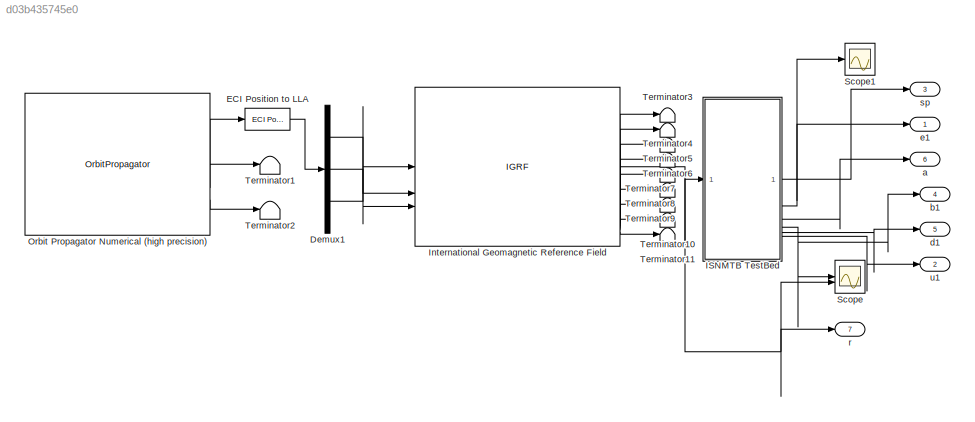
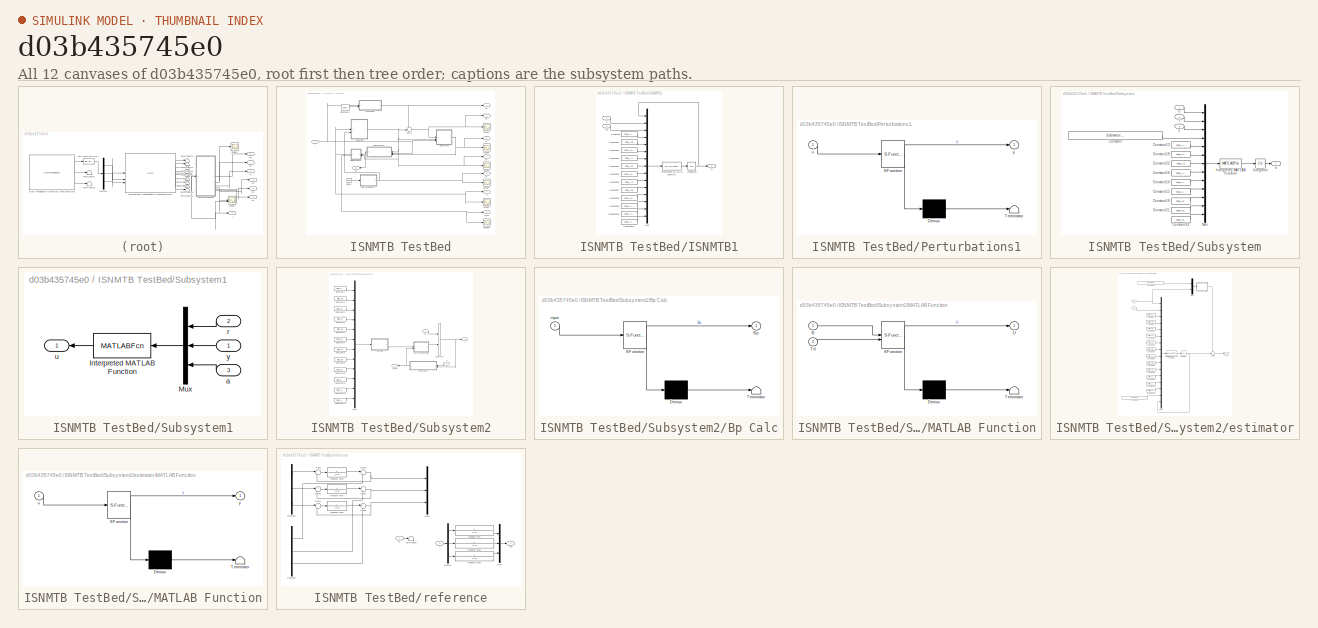
[diagram: thumbnail index - all 12 canvases of the model, root first then tree order]
MODEL slx_d03b435745e0
KIND model
CONFIG AbsTol = auto
CONFIG EnableMultiTasking = off
CONFIG FixedStep = 1E-4
CONFIG MaxStep = auto
CONFIG MinStep = auto
CONFIG RelTol = 1e-3
CONFIG SampleTimeConstraint = Unconstrained
CONFIG SolverName = ode4
CONFIG StartTime = 0.0
CONFIG StopTime = 20000
BLOCK [Demux] Demux1
  Outputs = 3
BLOCK [Reference] ECI Position to LLA  REF=aerolibtransform2/ECI Position to LLA
  AttributesFormatString = %<red>
  SourceBlock = aerolibtransform2/ECI Position to LLA
  SourceType = ECItoLLA
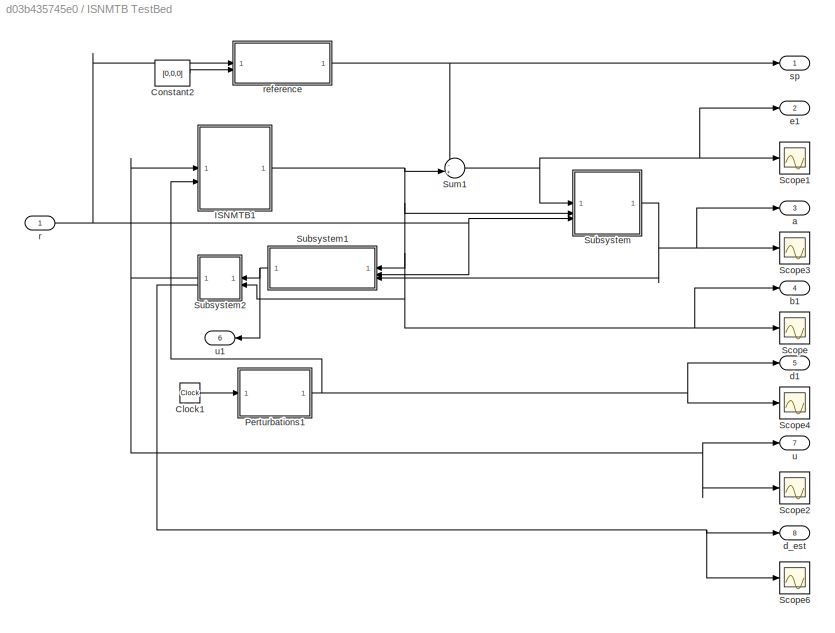
BLOCK [SubSystem] ISNMTB TestBed
BLOCK [Clock] ISNMTB TestBed/Clock1
  Decimation = 1000
BLOCK [Constant] ISNMTB TestBed/Constant2
  Value = [0,0,0]
BLOCK [SubSystem] ISNMTB TestBed/ISNMTB1
BLOCK [Constant] ISNMTB TestBed/ISNMTB1/Constant
  Value = initial_1.Lx
BLOCK [Constant] ISNMTB TestBed/ISNMTB1/Constant1
  Value = initial_1.Rx
BLOCK [Constant] ISNMTB TestBed/ISNMTB1/Constant10
  Value = initial_1.Lxz
BLOCK [Constant] ISNMTB TestBed/ISNMTB1/Constant11
  Value = initial_1.Lzy
BLOCK [Constant] ISNMTB TestBed/ISNMTB1/Constant2
  Value = initial_1.B_x
BLOCK [Constant] ISNMTB TestBed/ISNMTB1/Constant3
  Value = initial_1.Ly
BLOCK [Constant] ISNMTB TestBed/ISNMTB1/Constant4
  Value = initial_1.Ry
BLOCK [Constant] ISNMTB TestBed/ISNMTB1/Constant5
  Value = initial_1.B_y
BLOCK [Constant] ISNMTB TestBed/ISNMTB1/Constant6
  Value = initial_1.Lz
BLOCK [Constant] ISNMTB TestBed/ISNMTB1/Constant7
  Value = initial_1.Rz
BLOCK [Constant] ISNMTB TestBed/ISNMTB1/Constant8
  Value = initial_1.B_z
BLOCK [Constant] ISNMTB TestBed/ISNMTB1/Constant9
  Value = initial_1.Lxy
BLOCK [Integrator] ISNMTB TestBed/ISNMTB1/Integrator
  InitialCondition = [3.249E4, -2.265E4, 3.655E4]
BLOCK [MATLABFcn] ISNMTB TestBed/ISNMTB1/Interpreted MATLAB Function
  MATLABFcn = is501nmtbModel_simu
BLOCK [Mux] ISNMTB TestBed/ISNMTB1/Mux
  DisplayOption = bar
  Inputs = 15
BLOCK [Inport] ISNMTB TestBed/ISNMTB1/Td
  Port = 2
BLOCK [Outport] ISNMTB TestBed/ISNMTB1/X
BLOCK [Inport] ISNMTB TestBed/ISNMTB1/u
BLOCK [SubSystem] ISNMTB TestBed/Perturbations1
  ErrorFcn = Stateflow.Translate.translate
  PermitHierarchicalResolution = ExplicitOnly
  SFBlockType = MATLAB Function
  TreatAsAtomicUnit = on
BLOCK [Demux] ISNMTB TestBed/Perturbations1/ Demux 
  Outputs = 1
BLOCK [S-Function] ISNMTB TestBed/Perturbations1/ SFunction 
  EnableBusSupport = off
  FunctionName = sf_sfun
  PortCounts = [1 2]
  SFcnIsStateOwnerBlock = off
  SFunctionDeploymentMode = off
  Tag = Stateflow S-Function 2
BLOCK [Terminator] ISNMTB TestBed/Perturbations1/ Terminator 
BLOCK [Inport] ISNMTB TestBed/Perturbations1/u
BLOCK [Outport] ISNMTB TestBed/Perturbations1/y
BLOCK [Scope] ISNMTB TestBed/Scope
  Floating = off
  NumInputPorts = 1
  ScopeSpecificationString = Simulink.scopes.TimeScopeBlockCfg('CurrentConfiguration', extmgr.ConfigurationSet(extmgr.Configuration('Core','General UI',true),extmgr.Configuration('Core','Source UI',true),extmgr.Configuration('Sources','WiredSimulink',true,'DataLoggingVariableName','ScopeData1'),extmgr.Configuration('Visuals','Time Domain',true,'SerializedDisplays',{struct('MinYLimReal','-30050.00000','MaxYLimReal','43950.0000...<+1584ch>
BLOCK [Scope] ISNMTB TestBed/Scope1
  Floating = off
  NumInputPorts = 1
  ScopeSpecificationString = Simulink.scopes.TimeScopeBlockCfg('CurrentConfiguration', extmgr.ConfigurationSet(extmgr.Configuration('Core','General UI',true),extmgr.Configuration('Core','Source UI',true),extmgr.Configuration('Sources','WiredSimulink',true,'DataLoggingVariableName','ScopeData2'),extmgr.Configuration('Visuals','Time Domain',true,'SerializedDisplays',{struct('MinYLimReal','-30050.00000','MaxYLimReal','43950.0000...<+1602ch>
BLOCK [Scope] ISNMTB TestBed/Scope2
  Floating = off
  NumInputPorts = 1
  ScopeSpecificationString = Simulink.scopes.TimeScopeBlockCfg('CurrentConfiguration', extmgr.ConfigurationSet(extmgr.Configuration('Core','General UI',true),extmgr.Configuration('Core','Source UI',true),extmgr.Configuration('Sources','WiredSimulink',true,'DataLoggingVariableName','ScopeData3'),extmgr.Configuration('Visuals','Time Domain',true,'SerializedDisplays',{struct('MinYLimReal','-94284.44088','MaxYLimReal','30004.1811...<+1657ch>
BLOCK [Scope] ISNMTB TestBed/Scope3
  Floating = off
  NumInputPorts = 1
  ScopeSpecificationString = Simulink.scopes.TimeScopeBlockCfg('CurrentConfiguration', extmgr.ConfigurationSet(extmgr.Configuration('Core','General UI',true),extmgr.Configuration('Core','Source UI',true),extmgr.Configuration('Sources','WiredSimulink',true,'DataLoggingVariableName','ScopeData4'),extmgr.Configuration('Visuals','Time Domain',true,'SerializedDisplays',{struct('MinYLimReal','-2486.42839','MaxYLimReal','276.26982',...<+1760ch>
BLOCK [Scope] ISNMTB TestBed/Scope4
  Floating = off
  NumInputPorts = 1
  ScopeSpecificationString = Simulink.scopes.TimeScopeBlockCfg('CurrentConfiguration', extmgr.ConfigurationSet(extmgr.Configuration('Core','General UI',true),extmgr.Configuration('Core','Source UI',true),extmgr.Configuration('Sources','WiredSimulink',true,'DataLoggingVariableName','ScopeData5'),extmgr.Configuration('Visuals','Time Domain',true,'SerializedDisplays',{struct('MinYLimReal','36388.47732','MaxYLimReal','36759.81375...<+1548ch>
BLOCK [Scope] ISNMTB TestBed/Scope6
  Floating = off
  NumInputPorts = 1
  ScopeSpecificationString = Simulink.scopes.TimeScopeBlockCfg('CurrentConfiguration', extmgr.ConfigurationSet(extmgr.Configuration('Core','General UI',true),extmgr.Configuration('Core','Source UI',true),extmgr.Configuration('Sources','WiredSimulink',true,'DataLoggingVariableName','ScopeData7'),extmgr.Configuration('Visuals','Time Domain',true,'SerializedDisplays',{struct('MinYLimReal','-94284.44088','MaxYLimReal','30004.1811...<+1657ch>
BLOCK [SubSystem] ISNMTB TestBed/Subsystem
BLOCK [Constant] ISNMTB TestBed/Subsystem/Constant
  Value = [estimator.gamma1, estimator.gamma2, estimator.gamma3]
BLOCK [Constant] ISNMTB TestBed/Subsystem/Constant13
  Value = initial_1.Lx
BLOCK [Constant] ISNMTB TestBed/Subsystem/Constant14
  Value = initial_1.Lxz
BLOCK [Constant] ISNMTB TestBed/Subsystem/Constant15
  Value = initial_1.Lzy
BLOCK [Constant] ISNMTB TestBed/Subsystem/Constant16
  Value = initial_1.Lxy
BLOCK [Constant] ISNMTB TestBed/Subsystem/Constant18
  Value = initial_1.B_x
BLOCK [Constant] ISNMTB TestBed/Subsystem/Constant19
  Value = initial_1.Ly
BLOCK [Constant] ISNMTB TestBed/Subsystem/Constant21
  Value = initial_1.B_y
BLOCK [Constant] ISNMTB TestBed/Subsystem/Constant22
  Value = initial_1.Lz
BLOCK [Constant] ISNMTB TestBed/Subsystem/Constant24
  Value = initial_1.B_z
BLOCK [Integrator] ISNMTB TestBed/Subsystem/Integrator
  InitialCondition = [0,0,0,0,0,0]
BLOCK [MATLABFcn] ISNMTB TestBed/Subsystem/Interpreted MATLAB Function
  MATLABFcn = estimator
  OutputDimensions = 6
BLOCK [Mux] ISNMTB TestBed/Subsystem/Mux
  DisplayOption = bar
  Inputs = 13
BLOCK [Outport] ISNMTB TestBed/Subsystem/a
BLOCK [Inport] ISNMTB TestBed/Subsystem/e
BLOCK [Inport] ISNMTB TestBed/Subsystem/r
  Port = 3
BLOCK [Inport] ISNMTB TestBed/Subsystem/y
  Port = 2
BLOCK [SubSystem] ISNMTB TestBed/Subsystem1
  NameLocation = top
BLOCK [MATLABFcn] ISNMTB TestBed/Subsystem1/Interpreted MATLAB Function
  MATLABFcn = controller
  NameLocation = top
BLOCK [Mux] ISNMTB TestBed/Subsystem1/Mux
  DisplayOption = bar
  Inputs = 3
  NameLocation = top
BLOCK [Inport] ISNMTB TestBed/Subsystem1/a
  NameLocation = top
  Port = 3
BLOCK [Inport] ISNMTB TestBed/Subsystem1/r
  NameLocation = top
  Port = 2
BLOCK [Outport] ISNMTB TestBed/Subsystem1/u
  NameLocation = top
BLOCK [Inport] ISNMTB TestBed/Subsystem1/y
  NameLocation = top
BLOCK [SubSystem] ISNMTB TestBed/Subsystem2
  NameLocation = top
BLOCK [SubSystem] ISNMTB TestBed/Subsystem2/Bp Calc
  ErrorFcn = Stateflow.Translate.translate
  PermitHierarchicalResolution = ExplicitOnly
  SFBlockType = MATLAB Function
  TreatAsAtomicUnit = on
BLOCK [Demux] ISNMTB TestBed/Subsystem2/Bp Calc/ Demux 
  Outputs = 1
BLOCK [S-Function] ISNMTB TestBed/Subsystem2/Bp Calc/ SFunction 
  EnableBusSupport = off
  FunctionName = sf_sfun
  PortCounts = [1 2]
  SFcnIsStateOwnerBlock = off
  SFunctionDeploymentMode = off
  Tag = Stateflow S-Function 4
BLOCK [Terminator] ISNMTB TestBed/Subsystem2/Bp Calc/ Terminator 
BLOCK [Outport] ISNMTB TestBed/Subsystem2/Bp Calc/Bp
BLOCK [Inport] ISNMTB TestBed/Subsystem2/Bp Calc/input
BLOCK [Constant] ISNMTB TestBed/Subsystem2/Constant10
  Value = initial_1.Lxz
BLOCK [Constant] ISNMTB TestBed/Subsystem2/Constant11
  Value = initial_1.Lzy
BLOCK [Constant] ISNMTB TestBed/Subsystem2/Constant12
  Value = initial_1.B_z
BLOCK [Constant] ISNMTB TestBed/Subsystem2/Constant13
  Value = initial_1.Lxy
BLOCK [Constant] ISNMTB TestBed/Subsystem2/Constant2
  Value = initial_1.Lx
BLOCK [Constant] ISNMTB TestBed/Subsystem2/Constant3
  Value = initial_1.Rx
BLOCK [Constant] ISNMTB TestBed/Subsystem2/Constant4
  Value = initial_1.B_x
BLOCK [Constant] ISNMTB TestBed/Subsystem2/Constant5
  Value = initial_1.Ly
BLOCK [Constant] ISNMTB TestBed/Subsystem2/Constant6
  Value = initial_1.Ry
BLOCK [Constant] ISNMTB TestBed/Subsystem2/Constant7
  Value = initial_1.B_y
BLOCK [Constant] ISNMTB TestBed/Subsystem2/Constant8
  Value = initial_1.Lz
BLOCK [Constant] ISNMTB TestBed/Subsystem2/Constant9
  Value = initial_1.Rz
BLOCK [SubSystem] ISNMTB TestBed/Subsystem2/MATLAB Function
  ErrorFcn = Stateflow.Translate.translate
  PermitHierarchicalResolution = ExplicitOnly
  SFBlockType = MATLAB Function
  TreatAsAtomicUnit = on
BLOCK [Demux] ISNMTB TestBed/Subsystem2/MATLAB Function/ Demux 
  Outputs = 1
BLOCK [S-Function] ISNMTB TestBed/Subsystem2/MATLAB Function/ SFunction 
  EnableBusSupport = off
  FunctionName = sf_sfun
  PortCounts = [2 2]
  SFcnIsStateOwnerBlock = off
  SFunctionDeploymentMode = off
  Tag = Stateflow S-Function 5
BLOCK [Terminator] ISNMTB TestBed/Subsystem2/MATLAB Function/ Terminator 
BLOCK [Inport] ISNMTB TestBed/Subsystem2/MATLAB Function/B
BLOCK [Inport] ISNMTB TestBed/Subsystem2/MATLAB Function/Td
  Port = 2
BLOCK [Outport] ISNMTB TestBed/Subsystem2/MATLAB Function/U
BLOCK [Mux] ISNMTB TestBed/Subsystem2/Mux1
  DisplayOption = bar
  Inputs = 12
BLOCK [Sum] ISNMTB TestBed/Subsystem2/Subtract
  IconShape = rectangular
  Inputs = +-
BLOCK [Outport] ISNMTB TestBed/Subsystem2/d_est
  NameLocation = top
  Port = 2
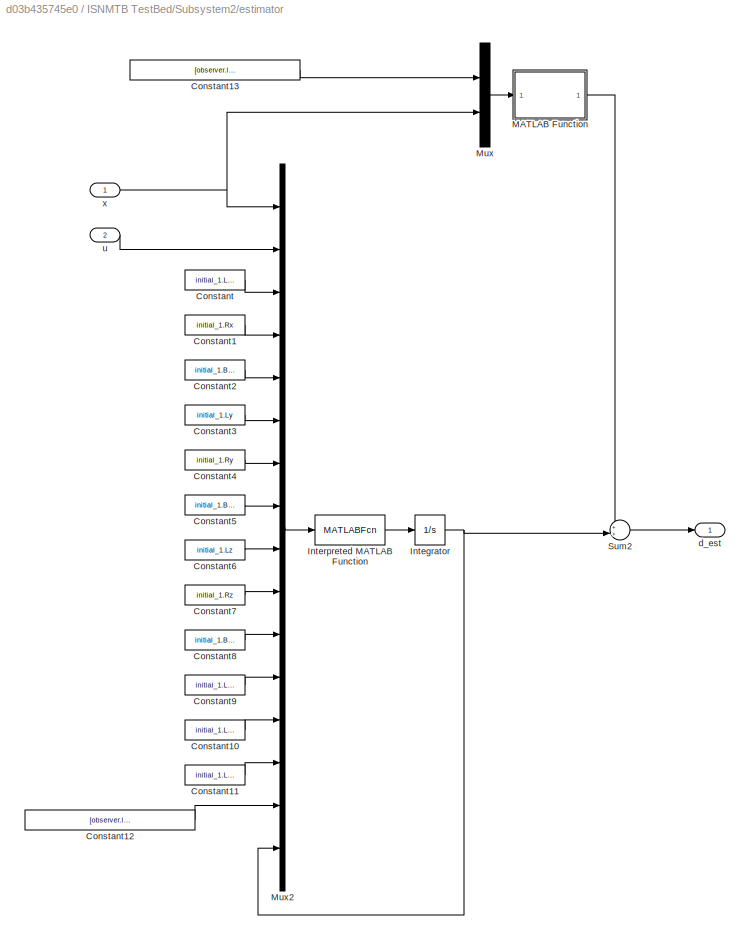
BLOCK [SubSystem] ISNMTB TestBed/Subsystem2/estimator
  NameLocation = top
BLOCK [Constant] ISNMTB TestBed/Subsystem2/estimator/Constant
  Value = initial_1.Lx
BLOCK [Constant] ISNMTB TestBed/Subsystem2/estimator/Constant1
  Value = initial_1.Rx
BLOCK [Constant] ISNMTB TestBed/Subsystem2/estimator/Constant10
  Value = initial_1.Lxz
BLOCK [Constant] ISNMTB TestBed/Subsystem2/estimator/Constant11
  Value = initial_1.Lzy
BLOCK [Constant] ISNMTB TestBed/Subsystem2/estimator/Constant12
  Value = [observer.l1,observer.l2,observer.l3]
BLOCK [Constant] ISNMTB TestBed/Subsystem2/estimator/Constant13
  Value = [observer.l1,observer.l2,observer.l3]
BLOCK [Constant] ISNMTB TestBed/Subsystem2/estimator/Constant2
  Value = initial_1.B_x
BLOCK [Constant] ISNMTB TestBed/Subsystem2/estimator/Constant3
  Value = initial_1.Ly
BLOCK [Constant] ISNMTB TestBed/Subsystem2/estimator/Constant4
  Value = initial_1.Ry
BLOCK [Constant] ISNMTB TestBed/Subsystem2/estimator/Constant5
  Value = initial_1.B_y
BLOCK [Constant] ISNMTB TestBed/Subsystem2/estimator/Constant6
  Value = initial_1.Lz
BLOCK [Constant] ISNMTB TestBed/Subsystem2/estimator/Constant7
  Value = initial_1.Rz
BLOCK [Constant] ISNMTB TestBed/Subsystem2/estimator/Constant8
  Value = initial_1.B_z
BLOCK [Constant] ISNMTB TestBed/Subsystem2/estimator/Constant9
  Value = initial_1.Lxy
BLOCK [Integrator] ISNMTB TestBed/Subsystem2/estimator/Integrator
  InitialCondition = [0,0,0]
BLOCK [MATLABFcn] ISNMTB TestBed/Subsystem2/estimator/Interpreted MATLAB Function
  MATLABFcn = Dist_observer
BLOCK [SubSystem] ISNMTB TestBed/Subsystem2/estimator/MATLAB Function
  ErrorFcn = Stateflow.Translate.translate
  PermitHierarchicalResolution = ExplicitOnly
  SFBlockType = MATLAB Function
  TreatAsAtomicUnit = on
BLOCK [Demux] ISNMTB TestBed/Subsystem2/estimator/MATLAB Function/ Demux 
  Outputs = 1
BLOCK [S-Function] ISNMTB TestBed/Subsystem2/estimator/MATLAB Function/ SFunction 
  EnableBusSupport = off
  FunctionName = sf_sfun
  PortCounts = [1 2]
  SFcnIsStateOwnerBlock = off
  SFunctionDeploymentMode = off
  Tag = Stateflow S-Function 3
BLOCK [Terminator] ISNMTB TestBed/Subsystem2/estimator/MATLAB Function/ Terminator 
BLOCK [Inport] ISNMTB TestBed/Subsystem2/estimator/MATLAB Function/u
BLOCK [Outport] ISNMTB TestBed/Subsystem2/estimator/MATLAB Function/y
BLOCK [Mux] ISNMTB TestBed/Subsystem2/estimator/Mux
  DisplayOption = bar
  Inputs = 2
BLOCK [Mux] ISNMTB TestBed/Subsystem2/estimator/Mux2
  DisplayOption = bar
  Inputs = 16
BLOCK [Sum] ISNMTB TestBed/Subsystem2/estimator/Sum2
  Inputs = ++|
BLOCK [Outport] ISNMTB TestBed/Subsystem2/estimator/d_est
BLOCK [Inport] ISNMTB TestBed/Subsystem2/estimator/u
  Port = 2
BLOCK [Inport] ISNMTB TestBed/Subsystem2/estimator/x
BLOCK [Outport] ISNMTB TestBed/Subsystem2/u
BLOCK [Inport] ISNMTB TestBed/Subsystem2/u1
BLOCK [Inport] ISNMTB TestBed/Subsystem2/x
  NameLocation = top
  Port = 2
BLOCK [Sum] ISNMTB TestBed/Sum1
  Inputs = -+|
BLOCK [Outport] ISNMTB TestBed/a
  Port = 3
BLOCK [Outport] ISNMTB TestBed/b1
  Port = 4
BLOCK [Outport] ISNMTB TestBed/d1
  Port = 5
BLOCK [Outport] ISNMTB TestBed/d_est
  Port = 8
BLOCK [Outport] ISNMTB TestBed/e1
  Port = 2
BLOCK [Inport] ISNMTB TestBed/r
BLOCK [SubSystem] ISNMTB TestBed/reference
BLOCK [Demux] ISNMTB TestBed/reference/Demux
  Outputs = 3
BLOCK [Demux] ISNMTB TestBed/reference/Demux1
  Commented = on
  Outputs = 3
BLOCK [Demux] ISNMTB TestBed/reference/Demux2
  Commented = on
  Outputs = 3
BLOCK [Mux] ISNMTB TestBed/reference/Mux
  DisplayOption = bar
  Inputs = 3
BLOCK [Mux] ISNMTB TestBed/reference/Mux1
  Commented = on
  DisplayOption = bar
  Inputs = 3
BLOCK [Sum] ISNMTB TestBed/reference/Sum
  Commented = on
  Inputs = |+-
BLOCK [Sum] ISNMTB TestBed/reference/Sum1
  Commented = on
  Inputs = |++
BLOCK [Sum] ISNMTB TestBed/reference/Sum2
  Commented = on
  Inputs = |+-
BLOCK [Sum] ISNMTB TestBed/reference/Sum3
  Commented = on
  Inputs = |++
BLOCK [Sum] ISNMTB TestBed/reference/Sum4
  Commented = on
  Inputs = |+-
BLOCK [Sum] ISNMTB TestBed/reference/Sum5
  Commented = on
  Inputs = |++
BLOCK [Terminator] ISNMTB TestBed/reference/Terminator
BLOCK [TransferFcn] ISNMTB TestBed/reference/Transfer Fcn
  Denominator = [1 1]
  Numerator = 1
BLOCK [TransferFcn] ISNMTB TestBed/reference/Transfer Fcn1
  Denominator = [1 1]
  Numerator = 1
BLOCK [TransferFcn] ISNMTB TestBed/reference/Transfer Fcn2
  Denominator = [1 1]
  Numerator = 1
BLOCK [TransferFcn] ISNMTB TestBed/reference/Transfer Fcn3
  Commented = on
  Denominator = [1 0]
  Numerator = 1
BLOCK [TransferFcn] ISNMTB TestBed/reference/Transfer Fcn4
  Commented = on
  Denominator = [1 0]
  Numerator = 1
BLOCK [TransferFcn] ISNMTB TestBed/reference/Transfer Fcn5
  Commented = on
  Denominator = [1 0]
  Numerator = 1
BLOCK [Inport] ISNMTB TestBed/reference/d
  Port = 2
BLOCK [Inport] ISNMTB TestBed/reference/r
BLOCK [Outport] ISNMTB TestBed/reference/ym
BLOCK [Outport] ISNMTB TestBed/sp
BLOCK [Outport] ISNMTB TestBed/u
  Port = 7
BLOCK [Outport] ISNMTB TestBed/u1
  NameLocation = top
  Port = 6
BLOCK [IGRF] International Geomagnetic Reference Field
  AttributesFormatString = %<generation>
  day = 1
  month = January
  time_in = off
  year = 2020
BLOCK [OrbitPropagator] Orbit Propagator Numerical (high precision)
  accelFrame = Fixed-frame
  argPeriapsis = orbit.argumentOfPeriapsis
  customJ2 = 1.0826269e-03
  customMu = 4.305e13
  customOmega = 4.06125949e-3
  customR = 3396200
  eccentricity = orbit.eccentricity
  fixedPosition = [-4142689.0 -2676864.7 -4669861.6]
  fixedVelocity = [1452.7 -6720.7 2568.1]
  gravityModel = None
  inclination = orbit.inclination
  inertialPosition = [3649700.0 3308200.0 -4676600.0]
  inertialVelocity = [-2750.8 6666.4 2573.4]
  outportFrame = Fixed-frame
  outputTransform = on
  raan = orbit.rightAscensionOfAscendingNode
  semiMajorAxis = orbit.semiMajorAxis
  trueAnomaly = orbit.trueAnomaly
BLOCK [Scope] Scope
  Floating = off
  NumInputPorts = 2
  ScopeSpecificationString = Simulink.scopes.TimeScopeBlockCfg('CurrentConfiguration', extmgr.ConfigurationSet(extmgr.Configuration('Core','General UI',true),extmgr.Configuration('Core','Source UI',true),extmgr.Configuration('Sources','WiredSimulink',true),extmgr.Configuration('Visuals','Time Domain',true,'SerializedDisplays',{struct('MinYLimReal','-30050.00000','MaxYLimReal','43950.00000','YLabelReal','','MinYLimMag','   0.0...<+1651ch>
BLOCK [Scope] Scope1
  Floating = off
  NumInputPorts = 1
  ScopeSpecificationString = Simulink.scopes.TimeScopeBlockCfg('CurrentConfiguration', extmgr.ConfigurationSet(extmgr.Configuration('Core','General UI',true),extmgr.Configuration('Core','Source UI',true),extmgr.Configuration('Sources','WiredSimulink',true,'DataLoggingVariableName','ScopeData1'),extmgr.Configuration('Visuals','Time Domain',true,'SerializedDisplays',{struct('MinYLimReal','-3359.32704','MaxYLimReal','4765.82054'...<+1630ch>
BLOCK [Terminator] Terminator1
BLOCK [Terminator] Terminator10
BLOCK [Terminator] Terminator11
BLOCK [Terminator] Terminator2
BLOCK [Terminator] Terminator3
BLOCK [Terminator] Terminator4
BLOCK [Terminator] Terminator5
BLOCK [Terminator] Terminator6
BLOCK [Terminator] Terminator7
BLOCK [Terminator] Terminator8
BLOCK [Terminator] Terminator9
BLOCK [Outport] a
  Port = 6
BLOCK [Outport] b1
  Port = 4
BLOCK [Outport] d1
  Port = 5
BLOCK [Outport] e1
BLOCK [Outport] r
  Port = 7
BLOCK [Outport] sp
  Port = 3
BLOCK [Outport] u1
  Port = 2
LINE Demux1:1 -> International Geomagnetic Reference Field:2
LINE Demux1:2 -> International Geomagnetic Reference Field:3
LINE Demux1:3 -> International Geomagnetic Reference Field:1
LINE ECI Position to LLA:1 -> Demux1:1
LINE ISNMTB TestBed/Clock1:1 -> ISNMTB TestBed/Perturbations1:1
LINE ISNMTB TestBed/Constant2:1 -> ISNMTB TestBed/reference:2
LINE ISNMTB TestBed/ISNMTB1/Constant10:1 -> ISNMTB TestBed/ISNMTB1/Mux:14
LINE ISNMTB TestBed/ISNMTB1/Constant11:1 -> ISNMTB TestBed/ISNMTB1/Mux:15
LINE ISNMTB TestBed/ISNMTB1/Constant1:1 -> ISNMTB TestBed/ISNMTB1/Mux:5
LINE ISNMTB TestBed/ISNMTB1/Constant2:1 -> ISNMTB TestBed/ISNMTB1/Mux:6
LINE ISNMTB TestBed/ISNMTB1/Constant3:1 -> ISNMTB TestBed/ISNMTB1/Mux:7
LINE ISNMTB TestBed/ISNMTB1/Constant4:1 -> ISNMTB TestBed/ISNMTB1/Mux:8
LINE ISNMTB TestBed/ISNMTB1/Constant5:1 -> ISNMTB TestBed/ISNMTB1/Mux:9
LINE ISNMTB TestBed/ISNMTB1/Constant6:1 -> ISNMTB TestBed/ISNMTB1/Mux:10
LINE ISNMTB TestBed/ISNMTB1/Constant7:1 -> ISNMTB TestBed/ISNMTB1/Mux:11
LINE ISNMTB TestBed/ISNMTB1/Constant8:1 -> ISNMTB TestBed/ISNMTB1/Mux:12
LINE ISNMTB TestBed/ISNMTB1/Constant9:1 -> ISNMTB TestBed/ISNMTB1/Mux:13
LINE ISNMTB TestBed/ISNMTB1/Constant:1 -> ISNMTB TestBed/ISNMTB1/Mux:4
NET ISNMTB TestBed/ISNMTB1/Integrator:1 -> ISNMTB TestBed/ISNMTB1/Mux:1, ISNMTB TestBed/ISNMTB1/X:1
LINE ISNMTB TestBed/ISNMTB1/Interpreted MATLAB Function:1 -> ISNMTB TestBed/ISNMTB1/Integrator:1
LINE ISNMTB TestBed/ISNMTB1/Mux:1 -> ISNMTB TestBed/ISNMTB1/Interpreted MATLAB Function:1
LINE ISNMTB TestBed/ISNMTB1/Td:1 -> ISNMTB TestBed/ISNMTB1/Mux:3
LINE ISNMTB TestBed/ISNMTB1/u:1 -> ISNMTB TestBed/ISNMTB1/Mux:2
NET ISNMTB TestBed/ISNMTB1:1 -> ISNMTB TestBed/Scope:1, ISNMTB TestBed/Subsystem1:1, ISNMTB TestBed/Subsystem2:2, ISNMTB TestBed/Subsystem:2, ISNMTB TestBed/Sum1:2, ISNMTB TestBed/b1:1
NET ISNMTB TestBed/Perturbations1:1 -> ISNMTB TestBed/ISNMTB1:2, ISNMTB TestBed/Scope4:1, ISNMTB TestBed/d1:1
LINE ISNMTB TestBed/Subsystem/Constant13:1 -> ISNMTB TestBed/Subsystem/Mux:5
LINE ISNMTB TestBed/Subsystem/Constant14:1 -> ISNMTB TestBed/Subsystem/Mux:9
LINE ISNMTB TestBed/Subsystem/Constant15:1 -> ISNMTB TestBed/Subsystem/Mux:10
LINE ISNMTB TestBed/Subsystem/Constant16:1 -> ISNMTB TestBed/Subsystem/Mux:8
LINE ISNMTB TestBed/Subsystem/Constant18:1 -> ISNMTB TestBed/Subsystem/Mux:11
LINE ISNMTB TestBed/Subsystem/Constant19:1 -> ISNMTB TestBed/Subsystem/Mux:6
LINE ISNMTB TestBed/Subsystem/Constant21:1 -> ISNMTB TestBed/Subsystem/Mux:12
LINE ISNMTB TestBed/Subsystem/Constant22:1 -> ISNMTB TestBed/Subsystem/Mux:7
LINE ISNMTB TestBed/Subsystem/Constant24:1 -> ISNMTB TestBed/Subsystem/Mux:13
LINE ISNMTB TestBed/Subsystem/Constant:1 -> ISNMTB TestBed/Subsystem/Mux:4
LINE ISNMTB TestBed/Subsystem/Integrator:1 -> ISNMTB TestBed/Subsystem/a:1
LINE ISNMTB TestBed/Subsystem/Interpreted MATLAB Function:1 -> ISNMTB TestBed/Subsystem/Integrator:1
LINE ISNMTB TestBed/Subsystem/Mux:1 -> ISNMTB TestBed/Subsystem/Interpreted MATLAB Function:1
LINE ISNMTB TestBed/Subsystem/e:1 -> ISNMTB TestBed/Subsystem/Mux:1
LINE ISNMTB TestBed/Subsystem/r:1 -> ISNMTB TestBed/Subsystem/Mux:2
LINE ISNMTB TestBed/Subsystem/y:1 -> ISNMTB TestBed/Subsystem/Mux:3
LINE ISNMTB TestBed/Subsystem1/Interpreted MATLAB Function:1 -> ISNMTB TestBed/Subsystem1/u:1
LINE ISNMTB TestBed/Subsystem1/Mux:1 -> ISNMTB TestBed/Subsystem1/Interpreted MATLAB Function:1
LINE ISNMTB TestBed/Subsystem1/a:1 -> ISNMTB TestBed/Subsystem1/Mux:3
LINE ISNMTB TestBed/Subsystem1/r:1 -> ISNMTB TestBed/Subsystem1/Mux:1
LINE ISNMTB TestBed/Subsystem1/y:1 -> ISNMTB TestBed/Subsystem1/Mux:2
NET ISNMTB TestBed/Subsystem1:1 -> ISNMTB TestBed/Subsystem2:1, ISNMTB TestBed/u1:1
LINE ISNMTB TestBed/Subsystem2/Bp Calc:1 -> ISNMTB TestBed/Subsystem2/MATLAB Function:1
LINE ISNMTB TestBed/Subsystem2/Constant10:1 -> ISNMTB TestBed/Subsystem2/Mux1:11
LINE ISNMTB TestBed/Subsystem2/Constant11:1 -> ISNMTB TestBed/Subsystem2/Mux1:12
LINE ISNMTB TestBed/Subsystem2/Constant12:1 -> ISNMTB TestBed/Subsystem2/Mux1:9
LINE ISNMTB TestBed/Subsystem2/Constant13:1 -> ISNMTB TestBed/Subsystem2/Mux1:10
LINE ISNMTB TestBed/Subsystem2/Constant2:1 -> ISNMTB TestBed/Subsystem2/Mux1:1
LINE ISNMTB TestBed/Subsystem2/Constant3:1 -> ISNMTB TestBed/Subsystem2/Mux1:2
LINE ISNMTB TestBed/Subsystem2/Constant4:1 -> ISNMTB TestBed/Subsystem2/Mux1:3
LINE ISNMTB TestBed/Subsystem2/Constant5:1 -> ISNMTB TestBed/Subsystem2/Mux1:4
LINE ISNMTB TestBed/Subsystem2/Constant6:1 -> ISNMTB TestBed/Subsystem2/Mux1:5
LINE ISNMTB TestBed/Subsystem2/Constant7:1 -> ISNMTB TestBed/Subsystem2/Mux1:6
LINE ISNMTB TestBed/Subsystem2/Constant8:1 -> ISNMTB TestBed/Subsystem2/Mux1:7
LINE ISNMTB TestBed/Subsystem2/Constant9:1 -> ISNMTB TestBed/Subsystem2/Mux1:8
LINE ISNMTB TestBed/Subsystem2/MATLAB Function:1 -> ISNMTB TestBed/Subsystem2/Subtract:2
LINE ISNMTB TestBed/Subsystem2/Mux1:1 -> ISNMTB TestBed/Subsystem2/Bp Calc:1
NET ISNMTB TestBed/Subsystem2/Subtract:1 -> ISNMTB TestBed/Subsystem2/estimator:2, ISNMTB TestBed/Subsystem2/u:1
LINE ISNMTB TestBed/Subsystem2/estimator/Constant10:1 -> ISNMTB TestBed/Subsystem2/estimator/Mux2:13
LINE ISNMTB TestBed/Subsystem2/estimator/Constant11:1 -> ISNMTB TestBed/Subsystem2/estimator/Mux2:14
LINE ISNMTB TestBed/Subsystem2/estimator/Constant12:1 -> ISNMTB TestBed/Subsystem2/estimator/Mux2:15
LINE ISNMTB TestBed/Subsystem2/estimator/Constant13:1 -> ISNMTB TestBed/Subsystem2/estimator/Mux:1
LINE ISNMTB TestBed/Subsystem2/estimator/Constant1:1 -> ISNMTB TestBed/Subsystem2/estimator/Mux2:4
LINE ISNMTB TestBed/Subsystem2/estimator/Constant2:1 -> ISNMTB TestBed/Subsystem2/estimator/Mux2:5
LINE ISNMTB TestBed/Subsystem2/estimator/Constant3:1 -> ISNMTB TestBed/Subsystem2/estimator/Mux2:6
LINE ISNMTB TestBed/Subsystem2/estimator/Constant4:1 -> ISNMTB TestBed/Subsystem2/estimator/Mux2:7
LINE ISNMTB TestBed/Subsystem2/estimator/Constant5:1 -> ISNMTB TestBed/Subsystem2/estimator/Mux2:8
LINE ISNMTB TestBed/Subsystem2/estimator/Constant6:1 -> ISNMTB TestBed/Subsystem2/estimator/Mux2:9
LINE ISNMTB TestBed/Subsystem2/estimator/Constant7:1 -> ISNMTB TestBed/Subsystem2/estimator/Mux2:10
LINE ISNMTB TestBed/Subsystem2/estimator/Constant8:1 -> ISNMTB TestBed/Subsystem2/estimator/Mux2:11
LINE ISNMTB TestBed/Subsystem2/estimator/Constant9:1 -> ISNMTB TestBed/Subsystem2/estimator/Mux2:12
LINE ISNMTB TestBed/Subsystem2/estimator/Constant:1 -> ISNMTB TestBed/Subsystem2/estimator/Mux2:3
NET ISNMTB TestBed/Subsystem2/estimator/Integrator:1 -> ISNMTB TestBed/Subsystem2/estimator/Mux2:16, ISNMTB TestBed/Subsystem2/estimator/Sum2:2
LINE ISNMTB TestBed/Subsystem2/estimator/Interpreted MATLAB Function:1 -> ISNMTB TestBed/Subsystem2/estimator/Integrator:1
LINE ISNMTB TestBed/Subsystem2/estimator/MATLAB Function:1 -> ISNMTB TestBed/Subsystem2/estimator/Sum2:1
LINE ISNMTB TestBed/Subsystem2/estimator/Mux2:1 -> ISNMTB TestBed/Subsystem2/estimator/Interpreted MATLAB Function:1
LINE ISNMTB TestBed/Subsystem2/estimator/Mux:1 -> ISNMTB TestBed/Subsystem2/estimator/MATLAB Function:1
LINE ISNMTB TestBed/Subsystem2/estimator/Sum2:1 -> ISNMTB TestBed/Subsystem2/estimator/d_est:1
LINE ISNMTB TestBed/Subsystem2/estimator/u:1 -> ISNMTB TestBed/Subsystem2/estimator/Mux2:2
NET ISNMTB TestBed/Subsystem2/estimator/x:1 -> ISNMTB TestBed/Subsystem2/estimator/Mux2:1, ISNMTB TestBed/Subsystem2/estimator/Mux:2
NET ISNMTB TestBed/Subsystem2/estimator:1 -> ISNMTB TestBed/Subsystem2/MATLAB Function:2, ISNMTB TestBed/Subsystem2/d_est:1
LINE ISNMTB TestBed/Subsystem2/u1:1 -> ISNMTB TestBed/Subsystem2/Subtract:1
LINE ISNMTB TestBed/Subsystem2/x:1 -> ISNMTB TestBed/Subsystem2/estimator:1
NET ISNMTB TestBed/Subsystem2:1 -> ISNMTB TestBed/ISNMTB1:1, ISNMTB TestBed/Scope2:1, ISNMTB TestBed/u:1
NET ISNMTB TestBed/Subsystem2:2 -> ISNMTB TestBed/Scope6:1, ISNMTB TestBed/d_est:1
NET ISNMTB TestBed/Subsystem:1 -> ISNMTB TestBed/Scope3:1, ISNMTB TestBed/Subsystem1:3, ISNMTB TestBed/a:1
NET ISNMTB TestBed/Sum1:1 -> ISNMTB TestBed/Scope1:1, ISNMTB TestBed/Subsystem:1, ISNMTB TestBed/e1:1
NET ISNMTB TestBed/r:1 -> ISNMTB TestBed/Subsystem1:2, ISNMTB TestBed/Subsystem:3, ISNMTB TestBed/reference:1
LINE ISNMTB TestBed/reference/Demux1:1 -> ISNMTB TestBed/reference/Sum:1
LINE ISNMTB TestBed/reference/Demux1:2 -> ISNMTB TestBed/reference/Sum2:1
LINE ISNMTB TestBed/reference/Demux1:3 -> ISNMTB TestBed/reference/Sum4:1
LINE ISNMTB TestBed/reference/Demux2:1 -> ISNMTB TestBed/reference/Sum1:2
LINE ISNMTB TestBed/reference/Demux2:2 -> ISNMTB TestBed/reference/Sum3:2
LINE ISNMTB TestBed/reference/Demux2:3 -> ISNMTB TestBed/reference/Sum5:2
LINE ISNMTB TestBed/reference/Demux:1 -> ISNMTB TestBed/reference/Transfer Fcn:1
LINE ISNMTB TestBed/reference/Demux:2 -> ISNMTB TestBed/reference/Transfer Fcn1:1
LINE ISNMTB TestBed/reference/Demux:3 -> ISNMTB TestBed/reference/Transfer Fcn2:1
LINE ISNMTB TestBed/reference/Mux:1 -> ISNMTB TestBed/reference/ym:1
NET ISNMTB TestBed/reference/Sum1:1 -> ISNMTB TestBed/reference/Mux1:1, ISNMTB TestBed/reference/Sum:2
LINE ISNMTB TestBed/reference/Sum2:1 -> ISNMTB TestBed/reference/Transfer Fcn4:1
NET ISNMTB TestBed/reference/Sum3:1 -> ISNMTB TestBed/reference/Mux1:2, ISNMTB TestBed/reference/Sum2:2
LINE ISNMTB TestBed/reference/Sum4:1 -> ISNMTB TestBed/reference/Transfer Fcn5:1
NET ISNMTB TestBed/reference/Sum5:1 -> ISNMTB TestBed/reference/Mux1:3, ISNMTB TestBed/reference/Sum4:2
LINE ISNMTB TestBed/reference/Sum:1 -> ISNMTB TestBed/reference/Transfer Fcn3:1
LINE ISNMTB TestBed/reference/Transfer Fcn1:1 -> ISNMTB TestBed/reference/Mux:2
LINE ISNMTB TestBed/reference/Transfer Fcn2:1 -> ISNMTB TestBed/reference/Mux:3
LINE ISNMTB TestBed/reference/Transfer Fcn3:1 -> ISNMTB TestBed/reference/Sum1:1
LINE ISNMTB TestBed/reference/Transfer Fcn4:1 -> ISNMTB TestBed/reference/Sum3:1
LINE ISNMTB TestBed/reference/Transfer Fcn5:1 -> ISNMTB TestBed/reference/Sum5:1
LINE ISNMTB TestBed/reference/Transfer Fcn:1 -> ISNMTB TestBed/reference/Mux:1
LINE ISNMTB TestBed/reference/d:1 -> ISNMTB TestBed/reference/Terminator:1
LINE ISNMTB TestBed/reference/r:1 -> ISNMTB TestBed/reference/Demux:1
NET ISNMTB TestBed/reference:1 -> ISNMTB TestBed/Sum1:1, ISNMTB TestBed/sp:1
LINE ISNMTB TestBed:1 -> sp:1
NET ISNMTB TestBed:2 -> Scope1:1, e1:1
LINE ISNMTB TestBed:3 -> a:1
NET ISNMTB TestBed:4 -> Scope:1, b1:1
LINE ISNMTB TestBed:5 -> d1:1
LINE ISNMTB TestBed:6 -> u1:1
NET International Geomagnetic Reference Field:1 -> ISNMTB TestBed:1, Scope:2, r:1
LINE International Geomagnetic Reference Field:10 -> Terminator11:1
LINE International Geomagnetic Reference Field:2 -> Terminator3:1
LINE International Geomagnetic Reference Field:3 -> Terminator4:1
LINE International Geomagnetic Reference Field:4 -> Terminator5:1
LINE International Geomagnetic Reference Field:5 -> Terminator6:1
LINE International Geomagnetic Reference Field:6 -> Terminator7:1
LINE International Geomagnetic Reference Field:7 -> Terminator8:1
LINE International Geomagnetic Reference Field:8 -> Terminator9:1
LINE International Geomagnetic Reference Field:9 -> Terminator10:1
LINE Orbit Propagator Numerical (high precision):1 -> ECI Position to LLA:1
LINE Orbit Propagator Numerical (high precision):2 -> Terminator1:1
LINE Orbit Propagator Numerical (high precision):3 -> Terminator2:1
note: NET lines group one-source signal fan-out (src -> all destinations, sorted); 1:1 wires keep LINE
CHART ISNMTB TestBed/Subsystem2/estimator/MATLAB Function states=1 transitions=1
  STATE_LABEL 'eML_blk_kernel()'
  STATE_LABEL 'SCRIPT:\nfunction y = fcn(u)\nl = diag([u(1),u(2),u(3)]);\nx = [u(4);u(5);u(6)];\n\ny = l*x;\nend\n'
CHART ISNMTB TestBed/Subsystem2/Bp Calc states=1 transitions=1
  STATE_LABEL 'eML_blk_kernel()'
  STATE_LABEL 'SCRIPT:\nfunction Bp = fcn(input)\n    Lxx =  input(1);\n    Rx  =  input(2);\n    B_1 =  input(3);\n    Lyy =  input(4);\n    Ry  =  input(5);\n    B_2 =  input(6);\n    Lzz =  input(7);\n    Rz  =  input(8);\n    B_3 =  input(9);\n    Lxy =  input(10);\n    Lxz =  input(11);\n    Lzy =  input(12);\n\n    %%%Parameter reading\n    L1 =[Lxx, (B_1/B_2)*Lxy, (B_1/B_3)*Lxz;\n        (B_2/B_1)*Lxy, Lyy, (B_2/B_3)*Lzy;...<+284ch>'
CHART ISNMTB TestBed/Subsystem2/MATLAB Function states=1 transitions=1
  STATE_LABEL 'eML_blk_kernel()'
  STATE_LABEL 'SCRIPT:\nfunction U = fcn(B,Td)\n U = inv(B)*Td;\nend'
CHART ISNMTB TestBed/Perturbations1 states=1 transitions=1
  STATE_LABEL 'eML_blk_kernel()'
  STATE_LABEL 'SCRIPT:\nfunction y = fcn(u)\ny= [2.522*sin(2*pi*4.788E-3*u)+3.249E04;\n   -5.174*sin(2*pi*7.481E-3*u)-2.265E04;\n    3.359*sin(2*pi*8.378E-3*u)+3.655E04];\nend'
CHART  states=0 transitions=0
CHART  states=0 transitions=0
CHART  states=0 transitions=0
CHART  states=0 transitions=0
